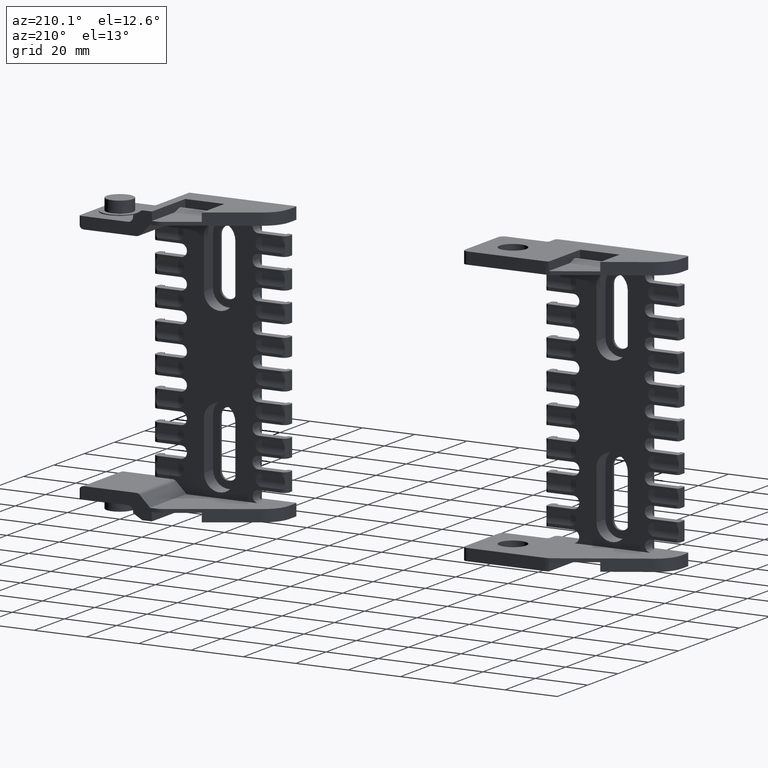
[diagram: clean part render]
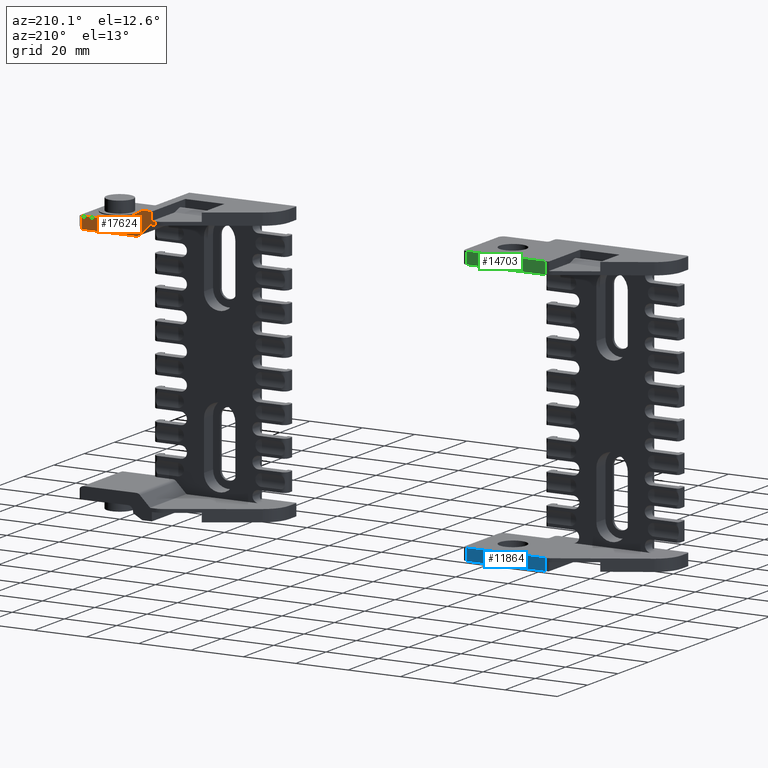
[diagram: same view with three faces highlighted in distinct colors, each labeled with its STEP entity id]
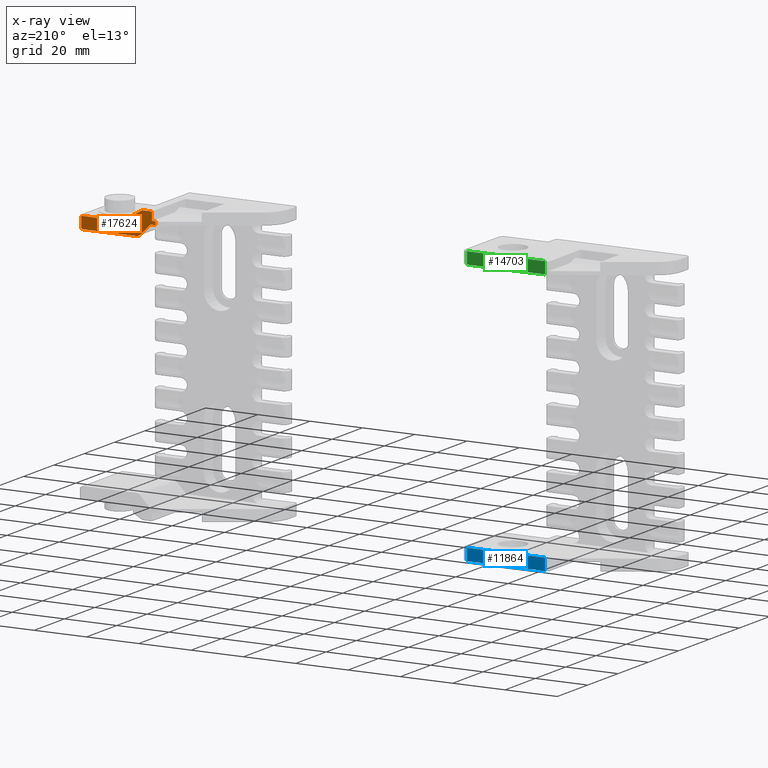
[diagram: x-ray of the same camera — body ghosted, the three highlighted faces saturated]
A machine part, auxiliary view with three faces highlighted in distinct colors.
The next image is the same camera in x-ray (body ghosted, the three faces saturated) — at least one of them is partly hidden behind the body in this view.
Their STEP definitions:

[orange] entity #17624 — the highlighted planar face has unit normal (-0, 1, 0).
#243 = CIRCLE ( 'NONE', #7482, 0.4999999999788853899 ) ;
#511 = CARTESIAN_POINT ( 'NONE',  ( 6.500000000000000000, 12.50000000000000000, 43.50000000000000000 ) ) ;
#955 = ORIENTED_EDGE ( 'NONE', *, *, #3691, .T. ) ;
#958 = CARTESIAN_POINT ( 'NONE',  ( -19.50000000000000000, 12.50000000000000000, 52.50000000000000000 ) ) ;
#1098 = CARTESIAN_POINT ( 'NONE',  ( -19.50000000000000000, 12.50000000000000000, 49.29999999999999716 ) ) ;
#1111 = ORIENTED_EDGE ( 'NONE', *, *, #7550, .T. ) ;
#1478 = CARTESIAN_POINT ( 'NONE',  ( 7.500000000000000000, 12.50000000000000000, 43.76794919243120319 ) ) ;
#1716 = LINE ( 'NONE', #5662, #10824 ) ;
#1742 = DIRECTION ( 'NONE',  ( 0.000000000000000000, 0.000000000000000000, 1.000000000000000000 ) ) ;
#1887 = LINE ( 'NONE', #11062, #15338 ) ;
#1893 = EDGE_CURVE ( 'NONE', #23168, #21080, #5477, .T. ) ;
#1911 = VERTEX_POINT ( 'NONE', #14629 ) ;
#1985 = VECTOR ( 'NONE', #11878, 1000.000000000000000 ) ;
#2097 = PLANE ( 'NONE',  #19116 ) ;
#2191 = DIRECTION ( 'NONE',  ( -0.7071067811865474617, 0.000000000000000000, 0.7071067811865474617 ) ) ;
#3050 = VERTEX_POINT ( 'NONE', #23015 ) ;
#3130 = ORIENTED_EDGE ( 'NONE', *, *, #6718, .T. ) ;
#3308 = CARTESIAN_POINT ( 'NONE',  ( -13.52157287525399987, 12.50000000000000000, 43.50000000000000000 ) ) ;
#3339 = DIRECTION ( 'NONE',  ( -9.029235692480982301E-13, 0.000000000000000000, 1.000000000000000000 ) ) ;
#3483 = VERTEX_POINT ( 'NONE', #15757 ) ;
#3525 = ORIENTED_EDGE ( 'NONE', *, *, #7510, .T. ) ;
#3691 = EDGE_CURVE ( 'NONE', #22878, #5529, #10373, .T. ) ;
#3786 = ORIENTED_EDGE ( 'NONE', *, *, #13442, .T. ) ;
#3989 = DIRECTION ( 'NONE',  ( -1.000000000000000000, 0.000000000000000000, 0.000000000000000000 ) ) ;
#4484 = EDGE_CURVE ( 'NONE', #3050, #18584, #17124, .T. ) ;
#4972 = ORIENTED_EDGE ( 'NONE', *, *, #5946, .T. ) ;
#5262 = EDGE_CURVE ( 'NONE', #21786, #1911, #10796, .T. ) ;
#5403 = VECTOR ( 'NONE', #22808, 1000.000000000000000 ) ;
#5477 = LINE ( 'NONE', #9404, #21364 ) ;
#5529 = VERTEX_POINT ( 'NONE', #19493 ) ;
#5662 = CARTESIAN_POINT ( 'NONE',  ( -14.93578643762699976, 12.50000000000000000, 44.08578643762700011 ) ) ;
#5779 = VERTEX_POINT ( 'NONE', #18289 ) ;
#5794 = VERTEX_POINT ( 'NONE', #14446 ) ;
#5854 = ORIENTED_EDGE ( 'NONE', *, *, #8619, .T. ) ;
#5946 = EDGE_CURVE ( 'NONE', #18584, #5779, #15276, .T. ) ;
#6044 = ORIENTED_EDGE ( 'NONE', *, *, #21556, .T. ) ;
#6164 = CARTESIAN_POINT ( 'NONE',  ( -15.69897459621600078, 12.50000000000000000, 52.43301270189199670 ) ) ;
#6353 = CIRCLE ( 'NONE', #16212, 1.999999999995193178 ) ;
#6716 = CARTESIAN_POINT ( 'NONE',  ( -18.73577164466300005, 12.50000000000000000, 47.88577164466300218 ) ) ;
#6718 = EDGE_CURVE ( 'NONE', #18707, #3483, #14692, .T. ) ;
#6808 = DIRECTION ( 'NONE',  ( 1.054017984048018385E-11, 0.000000000000000000, -1.000000000000000000 ) ) ;
#7094 = VECTOR ( 'NONE', #13700, 1000.000000000000000 ) ;
#7129 = CARTESIAN_POINT ( 'NONE',  ( -19.01154328932599924, 12.50000000000000000, 48.00000000000000000 ) ) ;
#7482 = AXIS2_PLACEMENT_3D ( 'NONE', #8695, #23013, #6808 ) ;
#7510 = EDGE_CURVE ( 'NONE', #21080, #14097, #14054, .T. ) ;
#7550 = EDGE_CURVE ( 'NONE', #14097, #3050, #243, .T. ) ;
#7587 = DIRECTION ( 'NONE',  ( -0.000000000000000000, 1.000000000000000000, 0.000000000000000000 ) ) ;
#7604 = EDGE_CURVE ( 'NONE', #13062, #5794, #6353, .T. ) ;
#7873 = ORIENTED_EDGE ( 'NONE', *, *, #4484, .T. ) ;
#7876 = CARTESIAN_POINT ( 'NONE',  ( -19.01154328932715032, 12.50000000000000000, 47.60999999999599908 ) ) ;
#7890 = ORIENTED_EDGE ( 'NONE', *, *, #19888, .T. ) ;
#8254 = CARTESIAN_POINT ( 'NONE',  ( 7.500000000000000000, 12.50000000000000000, 43.76794919243120319 ) ) ;
#8339 = EDGE_LOOP ( 'NONE', ( #22682, #17826, #3525, #1111, #7873, #4972, #3786, #3130, #19607, #955, #6044, #11692, #11871, #5854, #7890, #18171 ) ) ;
#8619 = EDGE_CURVE ( 'NONE', #12805, #20933, #22755, .T. ) ;
#8695 = CARTESIAN_POINT ( 'NONE',  ( -15.94897459621075164, 12.50000000000000000, 52.00000000002109601 ) ) ;
#9404 = CARTESIAN_POINT ( 'NONE',  ( -19.50000000000000000, 12.50000000000000000, 49.29999999999999716 ) ) ;
#9639 = CARTESIAN_POINT ( 'NONE',  ( -10.37500000000034106, 12.50000000000000000, 49.93999999999999773 ) ) ;
#10165 = CARTESIAN_POINT ( 'NONE',  ( -12.31499999999999950, 12.50000000000000000, 50.47927405783599397 ) ) ;
#10373 = CIRCLE ( 'NONE', #16856, 2.000000000000144773 ) ;
#10782 = VECTOR ( 'NONE', #13843, 1000.000000000000000 ) ;
#10796 = LINE ( 'NONE', #18081, #19899 ) ;
#10824 = VECTOR ( 'NONE', #2191, 1000.000000000000114 ) ;
#10953 = DIRECTION ( 'NONE',  ( 0.000000000000000000, 0.000000000000000000, 1.000000000000000000 ) ) ;
#11062 = CARTESIAN_POINT ( 'NONE',  ( -20.96025403784399899, 12.50000000000000000, 49.29999999999999716 ) ) ;
#11161 = FACE_OUTER_BOUND ( 'NONE', #8339, .T. ) ;
#11279 = DIRECTION ( 'NONE',  ( 1.000000000000000000, 0.000000000000000000, 0.000000000000000000 ) ) ;
#11440 = DIRECTION ( 'NONE',  ( 2.980165971519452903E-12, 0.000000000000000000, 1.000000000000000000 ) ) ;
#11575 = DIRECTION ( 'NONE',  ( -1.000000000000000000, 0.000000000000000000, 0.000000000000000000 ) ) ;
#11692 = ORIENTED_EDGE ( 'NONE', *, *, #7604, .T. ) ;
#11871 = ORIENTED_EDGE ( 'NONE', *, *, #23100, .T. ) ;
#11878 = DIRECTION ( 'NONE',  ( -1.000000000000000000, 0.000000000000000000, 0.000000000000000000 ) ) ;
#11939 = VECTOR ( 'NONE', #13296, 1000.000000000000114 ) ;
#12259 = DIRECTION ( 'NONE',  ( 0.000000000000000000, 1.000000000000000000, 0.000000000000000000 ) ) ;
#12549 = CARTESIAN_POINT ( 'NONE',  ( -15.94897459621600078, 12.50000000000000000, 52.50000000000000000 ) ) ;
#12718 = DIRECTION ( 'NONE',  ( 1.000000000000000000, 0.000000000000000000, 0.000000000000000000 ) ) ;
#12805 = VERTEX_POINT ( 'NONE', #6716 ) ;
#12843 = CARTESIAN_POINT ( 'NONE',  ( -12.31499999999999950, 12.50000000000000000, 50.47927405783599397 ) ) ;
#12990 = CARTESIAN_POINT ( 'NONE',  ( 6.499999999999849898, 12.50000000000000000, 45.50000000000000000 ) ) ;
#13062 = VERTEX_POINT ( 'NONE', #3308 ) ;
#13296 = DIRECTION ( 'NONE',  ( 0.8660254037844571373, 0.000000000000000000, -0.4999999999999679701 ) ) ;
#13442 = EDGE_CURVE ( 'NONE', #5779, #18707, #15823, .T. ) ;
#13667 = DIRECTION ( 'NONE',  ( 0.000000000000000000, -1.000000000000000000, 0.000000000000000000 ) ) ;
#13700 = DIRECTION ( 'NONE',  ( 1.000000000000000000, 0.000000000000000000, 0.000000000000000000 ) ) ;
#13843 = DIRECTION ( 'NONE',  ( 0.000000000000000000, 0.000000000000000000, -1.000000000000000000 ) ) ;
#14054 = LINE ( 'NONE', #958, #7094 ) ;
#14097 = VERTEX_POINT ( 'NONE', #12549 ) ;
#14446 = CARTESIAN_POINT ( 'NONE',  ( -14.93578643762699976, 12.50000000000000000, 44.08578643762700011 ) ) ;
#14629 = CARTESIAN_POINT ( 'NONE',  ( -20.96025403784399899, 12.50000000000000000, 49.29999999999999716 ) ) ;
#14692 = LINE ( 'NONE', #21523, #23048 ) ;
#15259 = DIRECTION ( 'NONE',  ( 0.000000000000000000, 1.000000000000000000, 0.000000000000000000 ) ) ;
#15276 = LINE ( 'NONE', #10165, #10782 ) ;
#15338 = VECTOR ( 'NONE', #12718, 1000.000000000000000 ) ;
#15757 = CARTESIAN_POINT ( 'NONE',  ( 7.500000000000000000, 12.50000000000000000, 48.00000000000000000 ) ) ;
#15823 = CIRCLE ( 'NONE', #16970, 1.939999999999657332 ) ;
#15921 = LINE ( 'NONE', #17250, #1985 ) ;
#16212 = AXIS2_PLACEMENT_3D ( 'NONE', #23129, #12259, #3339 ) ;
#16305 = CARTESIAN_POINT ( 'NONE',  ( -19.50000000000000000, 12.50000000000000000, 52.50000000000000000 ) ) ;
#16647 = CARTESIAN_POINT ( 'NONE',  ( -20.96025403784399899, 12.50000000000000000, 0.000000000000000000 ) ) ;
#16731 = LINE ( 'NONE', #511, #20310 ) ;
#16856 = AXIS2_PLACEMENT_3D ( 'NONE', #12990, #15259, #11575 ) ;
#16970 = AXIS2_PLACEMENT_3D ( 'NONE', #9639, #20616, #22414 ) ;
#17124 = LINE ( 'NONE', #6164, #11939 ) ;
#17250 = CARTESIAN_POINT ( 'NONE',  ( -19.01154328932599924, 12.50000000000000000, 48.00000000000000000 ) ) ;
#17624 = ADVANCED_FACE ( 'NONE', ( #11161 ), #2097, .T. ) ;
#17826 = ORIENTED_EDGE ( 'NONE', *, *, #1893, .T. ) ;
#17873 = EDGE_CURVE ( 'NONE', #22878, #3483, #21021, .T. ) ;
#18081 = CARTESIAN_POINT ( 'NONE',  ( -20.96025403784399899, 12.50000000000000000, 48.00000000000000000 ) ) ;
#18171 = ORIENTED_EDGE ( 'NONE', *, *, #5262, .T. ) ;
#18289 = CARTESIAN_POINT ( 'NONE',  ( -12.31499999999999950, 12.50000000000000000, 49.93999999999999773 ) ) ;
#18421 = DIRECTION ( 'NONE',  ( 1.000000000000000000, 0.000000000000000000, 0.000000000000000000 ) ) ;
#18584 = VERTEX_POINT ( 'NONE', #12843 ) ;
#18707 = VERTEX_POINT ( 'NONE', #20738 ) ;
#19116 = AXIS2_PLACEMENT_3D ( 'NONE', #16647, #7587, #11279 ) ;
#19493 = CARTESIAN_POINT ( 'NONE',  ( 6.500000000000000000, 12.50000000000000000, 43.50000000000000000 ) ) ;
#19607 = ORIENTED_EDGE ( 'NONE', *, *, #17873, .F. ) ;
#19702 = CARTESIAN_POINT ( 'NONE',  ( -20.96025403784399899, 12.50000000000000000, 48.00000000000000000 ) ) ;
#19888 = EDGE_CURVE ( 'NONE', #20933, #21786, #15921, .T. ) ;
#19899 = VECTOR ( 'NONE', #1742, 1000.000000000000000 ) ;
#20310 = VECTOR ( 'NONE', #3989, 1000.000000000000000 ) ;
#20616 = DIRECTION ( 'NONE',  ( 0.000000000000000000, -1.000000000000000000, 0.000000000000000000 ) ) ;
#20738 = CARTESIAN_POINT ( 'NONE',  ( -10.37500000000000000, 12.50000000000000000, 48.00000000000000000 ) ) ;
#20860 = AXIS2_PLACEMENT_3D ( 'NONE', #7876, #13667, #11440 ) ;
#20933 = VERTEX_POINT ( 'NONE', #7129 ) ;
#21021 = LINE ( 'NONE', #8254, #5403 ) ;
#21080 = VERTEX_POINT ( 'NONE', #16305 ) ;
#21135 = EDGE_CURVE ( 'NONE', #1911, #23168, #1887, .T. ) ;
#21364 = VECTOR ( 'NONE', #10953, 1000.000000000000000 ) ;
#21523 = CARTESIAN_POINT ( 'NONE',  ( -10.37500000000000000, 12.50000000000000000, 48.00000000000000000 ) ) ;
#21556 = EDGE_CURVE ( 'NONE', #5529, #13062, #16731, .T. ) ;
#21786 = VERTEX_POINT ( 'NONE', #19702 ) ;
#22414 = DIRECTION ( 'NONE',  ( 1.725781602389602670E-13, 0.000000000000000000, -1.000000000000000000 ) ) ;
#22682 = ORIENTED_EDGE ( 'NONE', *, *, #21135, .T. ) ;
#22755 = CIRCLE ( 'NONE', #20860, 0.3900000000039843817 ) ;
#22808 = DIRECTION ( 'NONE',  ( 0.000000000000000000, 0.000000000000000000, 1.000000000000000000 ) ) ;
#22878 = VERTEX_POINT ( 'NONE', #1478 ) ;
#23013 = DIRECTION ( 'NONE',  ( 0.000000000000000000, 1.000000000000000000, 0.000000000000000000 ) ) ;
#23015 = CARTESIAN_POINT ( 'NONE',  ( -15.69897459621600078, 12.50000000000000000, 52.43301270189199670 ) ) ;
#23048 = VECTOR ( 'NONE', #18421, 1000.000000000000000 ) ;
#23100 = EDGE_CURVE ( 'NONE', #5794, #12805, #1716, .T. ) ;
#23129 = CARTESIAN_POINT ( 'NONE',  ( -13.52157287525579932, 12.50000000000000000, 45.49999999999519673 ) ) ;
#23168 = VERTEX_POINT ( 'NONE', #1098 ) ;

[blue] entity #11864 — the highlighted planar face has unit normal (-0, 1, 0).
#1839 = CARTESIAN_POINT ( 'NONE',  ( -139.9999999999999716, 12.49999999999999645, -52.50000000000000000 ) ) ;
#2586 = CARTESIAN_POINT ( 'NONE',  ( -139.9999999999999716, 12.49999999999999645, -52.50000000000000000 ) ) ;
#3560 = CARTESIAN_POINT ( 'NONE',  ( -169.8069120782209609, 12.49999999999999645, -52.50000000000000000 ) ) ;
#4618 = ORIENTED_EDGE ( 'NONE', *, *, #6443, .T. ) ;
#5349 = DIRECTION ( 'NONE',  ( 1.000000000000000000, 0.000000000000000000, 0.000000000000000000 ) ) ;
#5470 = DIRECTION ( 'NONE',  ( -0.000000000000000000, 1.000000000000000000, 0.000000000000000000 ) ) ;
#6327 = VECTOR ( 'NONE', #13537, 1000.000000000000000 ) ;
#6443 = EDGE_CURVE ( 'NONE', #10140, #21077, #19790, .T. ) ;
#6816 = EDGE_CURVE ( 'NONE', #7123, #21977, #16010, .T. ) ;
#7123 = VERTEX_POINT ( 'NONE', #23265 ) ;
#7180 = EDGE_LOOP ( 'NONE', ( #4618, #13862, #20319, #14977 ) ) ;
#7196 = DIRECTION ( 'NONE',  ( -1.000000000000000000, 0.000000000000000000, 0.000000000000000000 ) ) ;
#7266 = DIRECTION ( 'NONE',  ( 0.000000000000000000, 0.000000000000000000, 1.000000000000000000 ) ) ;
#8450 = EDGE_CURVE ( 'NONE', #21977, #10140, #14297, .T. ) ;
#8642 = VECTOR ( 'NONE', #7266, 1000.000000000000000 ) ;
#8967 = VECTOR ( 'NONE', #7196, 1000.000000000000000 ) ;
#10140 = VERTEX_POINT ( 'NONE', #20358 ) ;
#11864 = ADVANCED_FACE ( 'NONE', ( #14389 ), #12833, .T. ) ;
#12833 = PLANE ( 'NONE',  #15401 ) ;
#13537 = DIRECTION ( 'NONE',  ( 0.000000000000000000, 0.000000000000000000, 1.000000000000000000 ) ) ;
#13862 = ORIENTED_EDGE ( 'NONE', *, *, #13902, .F. ) ;
#13902 = EDGE_CURVE ( 'NONE', #7123, #21077, #22494, .T. ) ;
#14297 = LINE ( 'NONE', #20169, #8642 ) ;
#14389 = FACE_OUTER_BOUND ( 'NONE', #7180, .T. ) ;
#14977 = ORIENTED_EDGE ( 'NONE', *, *, #8450, .T. ) ;
#15401 = AXIS2_PLACEMENT_3D ( 'NONE', #21682, #5470, #5349 ) ;
#15811 = VECTOR ( 'NONE', #19674, 1000.000000000000000 ) ;
#16010 = LINE ( 'NONE', #1839, #8967 ) ;
#16065 = CARTESIAN_POINT ( 'NONE',  ( -169.8069120782209609, 12.49999999999999645, -48.00000000000000000 ) ) ;
#17982 = CARTESIAN_POINT ( 'NONE',  ( -139.9999999999999716, 12.49999999999999645, -48.00000000000000000 ) ) ;
#19674 = DIRECTION ( 'NONE',  ( 1.000000000000000000, 0.000000000000000000, 0.000000000000000000 ) ) ;
#19790 = LINE ( 'NONE', #16065, #15811 ) ;
#20169 = CARTESIAN_POINT ( 'NONE',  ( -169.8069120782209609, 12.49999999999999645, -52.50000000000000000 ) ) ;
#20319 = ORIENTED_EDGE ( 'NONE', *, *, #6816, .T. ) ;
#20358 = CARTESIAN_POINT ( 'NONE',  ( -169.8069120782209609, 12.49999999999999645, -48.00000000000000000 ) ) ;
#21077 = VERTEX_POINT ( 'NONE', #17982 ) ;
#21682 = CARTESIAN_POINT ( 'NONE',  ( -169.8069120782209609, 12.49999999999999645, 0.000000000000000000 ) ) ;
#21977 = VERTEX_POINT ( 'NONE', #3560 ) ;
#22494 = LINE ( 'NONE', #2586, #6327 ) ;
#23265 = CARTESIAN_POINT ( 'NONE',  ( -139.9999999999999716, 12.49999999999999645, -52.50000000000000000 ) ) ;

[green] entity #14703 — the highlighted planar face has unit normal (-0, 1, 0).
#318 = CARTESIAN_POINT ( 'NONE',  ( -169.8069120782209609, 12.49999999999999645, 0.000000000000000000 ) ) ;
#794 = VECTOR ( 'NONE', #22860, 1000.000000000000000 ) ;
#2025 = EDGE_CURVE ( 'NONE', #16472, #17944, #4279, .T. ) ;
#2174 = ORIENTED_EDGE ( 'NONE', *, *, #21351, .T. ) ;
#2480 = DIRECTION ( 'NONE',  ( -1.000000000000000000, 0.000000000000000000, 0.000000000000000000 ) ) ;
#4279 = LINE ( 'NONE', #20736, #794 ) ;
#4392 = LINE ( 'NONE', #9394, #23285 ) ;
#5077 = LINE ( 'NONE', #17690, #7746 ) ;
#6021 = CARTESIAN_POINT ( 'NONE',  ( -139.9999999999999716, 12.49999999999999645, 52.50000000000000711 ) ) ;
#6509 = LINE ( 'NONE', #13882, #6774 ) ;
#6774 = VECTOR ( 'NONE', #21177, 1000.000000000000000 ) ;
#7059 = ORIENTED_EDGE ( 'NONE', *, *, #2025, .T. ) ;
#7334 = VERTEX_POINT ( 'NONE', #13234 ) ;
#7713 = DIRECTION ( 'NONE',  ( -0.000000000000000000, 1.000000000000000000, 0.000000000000000000 ) ) ;
#7746 = VECTOR ( 'NONE', #12319, 1000.000000000000000 ) ;
#9385 = PLANE ( 'NONE',  #22711 ) ;
#9394 = CARTESIAN_POINT ( 'NONE',  ( -139.9999999999999716, 12.49999999999999645, 48.00000000000000000 ) ) ;
#10293 = EDGE_CURVE ( 'NONE', #16271, #17944, #6509, .T. ) ;
#12036 = ORIENTED_EDGE ( 'NONE', *, *, #19771, .T. ) ;
#12319 = DIRECTION ( 'NONE',  ( 0.000000000000000000, 0.000000000000000000, 1.000000000000000000 ) ) ;
#13234 = CARTESIAN_POINT ( 'NONE',  ( -169.8069120782209609, 12.49999999999999645, 48.00000000000000000 ) ) ;
#13882 = CARTESIAN_POINT ( 'NONE',  ( -139.9999999999999716, 12.49999999999999645, 48.00000000000000000 ) ) ;
#14703 = ADVANCED_FACE ( 'NONE', ( #14975 ), #9385, .T. ) ;
#14975 = FACE_OUTER_BOUND ( 'NONE', #22740, .T. ) ;
#16271 = VERTEX_POINT ( 'NONE', #20494 ) ;
#16472 = VERTEX_POINT ( 'NONE', #17835 ) ;
#16532 = DIRECTION ( 'NONE',  ( 1.000000000000000000, 0.000000000000000000, 0.000000000000000000 ) ) ;
#17690 = CARTESIAN_POINT ( 'NONE',  ( -169.8069120782209609, 12.49999999999999645, 48.00000000000000000 ) ) ;
#17835 = CARTESIAN_POINT ( 'NONE',  ( -169.8069120782209609, 12.49999999999999645, 52.50000000000000711 ) ) ;
#17944 = VERTEX_POINT ( 'NONE', #6021 ) ;
#19771 = EDGE_CURVE ( 'NONE', #16271, #7334, #4392, .T. ) ;
#20494 = CARTESIAN_POINT ( 'NONE',  ( -139.9999999999999716, 12.49999999999999645, 48.00000000000000000 ) ) ;
#20736 = CARTESIAN_POINT ( 'NONE',  ( -169.8069120782209609, 12.49999999999999645, 52.50000000000000711 ) ) ;
#21177 = DIRECTION ( 'NONE',  ( 0.000000000000000000, 0.000000000000000000, 1.000000000000000000 ) ) ;
#21351 = EDGE_CURVE ( 'NONE', #7334, #16472, #5077, .T. ) ;
#21416 = ORIENTED_EDGE ( 'NONE', *, *, #10293, .F. ) ;
#22711 = AXIS2_PLACEMENT_3D ( 'NONE', #318, #7713, #16532 ) ;
#22740 = EDGE_LOOP ( 'NONE', ( #12036, #2174, #7059, #21416 ) ) ;
#22860 = DIRECTION ( 'NONE',  ( 1.000000000000000000, 0.000000000000000000, 0.000000000000000000 ) ) ;
#23285 = VECTOR ( 'NONE', #2480, 1000.000000000000000 ) ;